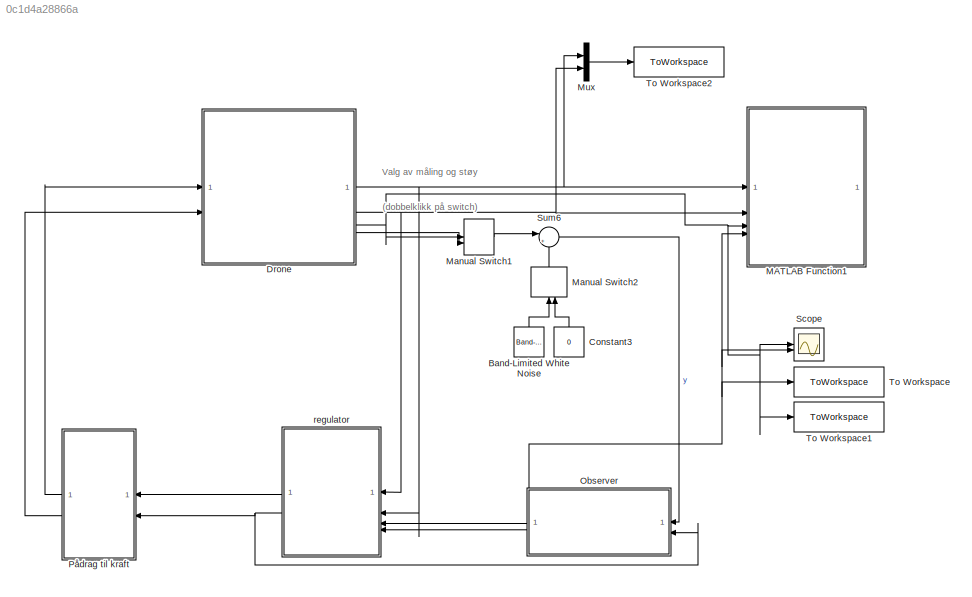
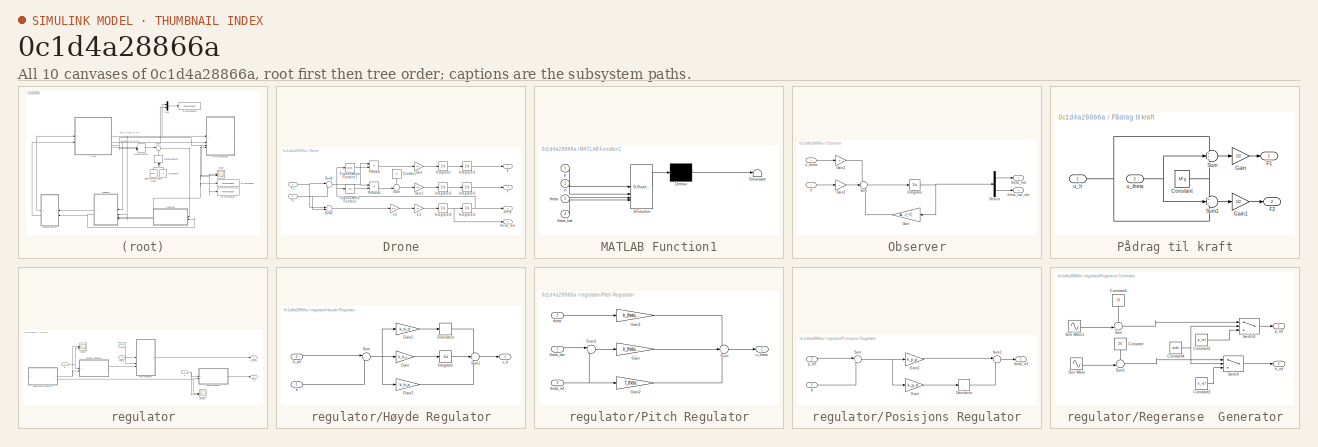
[diagram: thumbnail index - all 10 canvases of the model, root first then tree order]
MODEL slx_0c1d4a28866a
KIND model
CONFIG AbsTol = auto
CONFIG EnableMultiTasking = off
CONFIG FixedStep = auto
CONFIG MaxStep = auto
CONFIG MinStep = auto
CONFIG RelTol = 1e-3
CONFIG SampleTimeConstraint = Unconstrained
CONFIG SolverName = VariableStepAuto
CONFIG StartTime = 0.0
CONFIG StopTime = stopTime
BLOCK [Reference] Band-Limited White Noise  REF=simulink/Sources/Band-Limited
White Noise
  NameLocation = right
  SourceBlock = simulink/Sources/Band-Limited\nWhite Noise
  SourceType = Band-Limited White Noise.
BLOCK [Constant] Constant3
  NameLocation = right
  Value = 0
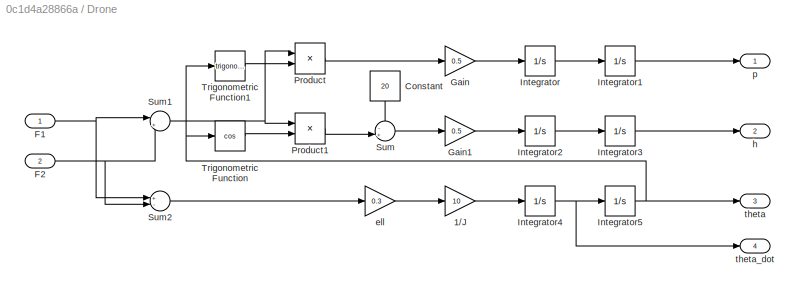
BLOCK [SubSystem] Drone
BLOCK [Gain] Drone/1//J
  Gain = 10
BLOCK [Constant] Drone/Constant
  NameLocation = left
  Value = 20
BLOCK [Inport] Drone/F1
BLOCK [Inport] Drone/F2
  Port = 2
BLOCK [Gain] Drone/Gain
  Gain = 0.5
BLOCK [Gain] Drone/Gain1
  Gain = 0.5
BLOCK [Integrator] Drone/Integrator
BLOCK [Integrator] Drone/Integrator1
BLOCK [Integrator] Drone/Integrator2
BLOCK [Integrator] Drone/Integrator3
  LimitOutput = on
  LowerSaturationLimit = 0
BLOCK [Integrator] Drone/Integrator4
BLOCK [Integrator] Drone/Integrator5
BLOCK [Product] Drone/Product
BLOCK [Product] Drone/Product1
BLOCK [Sum] Drone/Sum
  Inputs = -+|
BLOCK [Sum] Drone/Sum1
  Inputs = |++
BLOCK [Sum] Drone/Sum2
  Inputs = +-|
BLOCK [Trigonometry] Drone/Trigonometric Function
  Operator = cos
BLOCK [Trigonometry] Drone/Trigonometric Function1
BLOCK [Gain] Drone/ell
  Gain = 0.3
BLOCK [Outport] Drone/h
  Port = 2
BLOCK [Outport] Drone/p
BLOCK [Outport] Drone/theta
  Port = 3
BLOCK [Outport] Drone/theta_dot
  Port = 4
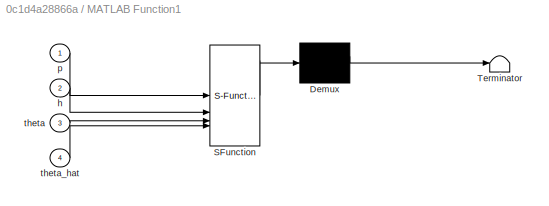
BLOCK [SubSystem] MATLAB Function1
  ErrorFcn = Stateflow.Translate.translate
  PermitHierarchicalResolution = ExplicitOnly
  SFBlockType = MATLAB Function
  SystemSampleTime = 1/30
  TreatAsAtomicUnit = on
BLOCK [Demux] MATLAB Function1/ Demux 
  Outputs = 1
BLOCK [S-Function] MATLAB Function1/ SFunction 
  EnableBusSupport = on
  FunctionName = sf_sfun
  PortCounts = [4 1]
  SFcnIsStateOwnerBlock = off
  SFunctionDeploymentMode = off
  Tag = Stateflow S-Function 3
BLOCK [Terminator] MATLAB Function1/ Terminator 
BLOCK [Inport] MATLAB Function1/h
  Port = 2
BLOCK [Inport] MATLAB Function1/p
BLOCK [Inport] MATLAB Function1/theta
  Port = 3
BLOCK [Inport] MATLAB Function1/theta_hat
  Port = 4
BLOCK [ManualSwitch] Manual Switch1
BLOCK [ManualSwitch] Manual Switch2
  NameLocation = right
BLOCK [Mux] Mux
  DisplayOption = bar
  Inputs = 2
BLOCK [SubSystem] Observer
  NameLocation = top
BLOCK [Demux] Observer/Demux
  Outputs = 2
BLOCK [Gain] Observer/Gain
  Gain = A - L*C
  Multiplication = Matrix(K*u)
  NameLocation = top
BLOCK [Gain] Observer/Gain1
  Gain = B
BLOCK [Gain] Observer/Gain2
  Gain = L
BLOCK [Integrator] Observer/Integrator
BLOCK [Sum] Observer/Sum
  Inputs = +++
BLOCK [Outport] Observer/theta_hat
BLOCK [Outport] Observer/theta_hat_dot
  Port = 2
BLOCK [Inport] Observer/u_theta
  Port = 2
BLOCK [Inport] Observer/y
BLOCK [SubSystem] Pådrag til kraft
  NameLocation = top
BLOCK [Constant] Pådrag til kraft/Constant
  Value = M*g
BLOCK [Outport] Pådrag til kraft/F1
BLOCK [Outport] Pådrag til kraft/F2
  Port = 2
BLOCK [Gain] Pådrag til kraft/Gain
  Gain = 1/2
BLOCK [Gain] Pådrag til kraft/Gain1
  Gain = 1/2
BLOCK [Sum] Pådrag til kraft/Sum
  Inputs = +++
BLOCK [Sum] Pådrag til kraft/Sum1
  Inputs = +-+
BLOCK [Inport] Pådrag til kraft/u_h
BLOCK [Inport] Pådrag til kraft/u_theta
  Port = 2
BLOCK [Scope] Scope
  Floating = off
  NumInputPorts = 2
  ScopeSpecificationString = Simulink.scopes.TimeScopeBlockCfg('CurrentConfiguration', extmgr.ConfigurationSet(extmgr.Configuration('Core','General UI',true),extmgr.Configuration('Core','Source UI',true),extmgr.Configuration('Sources','WiredSimulink',true),extmgr.Configuration('Visuals','Time Domain',true,'SerializedDisplays',{struct('MinYLimReal','-0.20781','MaxYLimReal','0.65338','YLabelReal','','MinYLimMag','0.00000','MaxY...<+1424ch>
BLOCK [Sum] Sum6
  Inputs = |++
BLOCK [ToWorkspace] To Workspace
  FixptAsFi = on
  MaxDataPoints = inf
  SampleTime = -1
  VariableName = theta_hat
BLOCK [ToWorkspace] To Workspace1
  FixptAsFi = on
  MaxDataPoints = inf
  SampleTime = -1
  VariableName = theta
BLOCK [ToWorkspace] To Workspace2
  FixptAsFi = on
  MaxDataPoints = inf
  SampleTime = -1
  VariableName = bane
BLOCK [SubSystem] regulator
  NameLocation = top
BLOCK [SubSystem] regulator/Høyde Regulator
BLOCK [Derivative] regulator/Høyde Regulator/Derivative
BLOCK [Gain] regulator/Høyde Regulator/Gain
  Gain = k_h_i
BLOCK [Gain] regulator/Høyde Regulator/Gain1
  Gain = k_h_d
BLOCK [Gain] regulator/Høyde Regulator/Gain2
  Gain = k_h_p
BLOCK [Integrator] regulator/Høyde Regulator/Integrator
BLOCK [Sum] regulator/Høyde Regulator/Sum
  Inputs = |+-
BLOCK [Sum] regulator/Høyde Regulator/Sum1
  Inputs = +++
BLOCK [Inport] regulator/Høyde Regulator/h
BLOCK [Inport] regulator/Høyde Regulator/h_ref
  Port = 2
BLOCK [Outport] regulator/Høyde Regulator/u_h
BLOCK [SubSystem] regulator/Pitch Regulator
BLOCK [Gain] regulator/Pitch Regulator/Gain
  Gain = k_theta_d
BLOCK [Gain] regulator/Pitch Regulator/Gain1
  Gain = k_theta_p
BLOCK [Gain] regulator/Pitch Regulator/Gain2
  Gain = f_theta
BLOCK [Sum] regulator/Pitch Regulator/Sum
  Inputs = --+
BLOCK [Sum] regulator/Pitch Regulator/Sum1
  Inputs = |+-
BLOCK [Inport] regulator/Pitch Regulator/theta
  Port = 2
BLOCK [Inport] regulator/Pitch Regulator/theta_dot
BLOCK [Inport] regulator/Pitch Regulator/theta_ref
  Port = 3
BLOCK [Outport] regulator/Pitch Regulator/u_theta
BLOCK [SubSystem] regulator/Posisjons Regulator
BLOCK [Derivative] regulator/Posisjons Regulator/Derivative
BLOCK [Gain] regulator/Posisjons Regulator/Gain
  Gain = k_p_d
BLOCK [Gain] regulator/Posisjons Regulator/Gain1
  Gain = k_p_p
BLOCK [Sum] regulator/Posisjons Regulator/Sum
  Inputs = |+-
BLOCK [Sum] regulator/Posisjons Regulator/Sum1
  Inputs = |++
BLOCK [Inport] regulator/Posisjons Regulator/p
BLOCK [Inport] regulator/Posisjons Regulator/p_ref
  Port = 2
BLOCK [Outport] regulator/Posisjons Regulator/theta_ref
BLOCK [SubSystem] regulator/Regeranse  Generator
BLOCK [Constant] regulator/Regeranse  Generator/Constant
  NameLocation = left
  Value = 20
BLOCK [Constant] regulator/Regeranse  Generator/Constant1
  NameLocation = left
  Value = 10
BLOCK [Constant] regulator/Regeranse  Generator/Constant2
  Value = p_ref
BLOCK [Constant] regulator/Regeranse  Generator/Constant3
  Value = h_ref
BLOCK [Constant] regulator/Regeranse  Generator/Constant4
  Value = circle
BLOCK [Sin] regulator/Regeranse  Generator/Sine Wave
  Amplitude = 5
  Frequency = 1/4
  SampleTime = 0
BLOCK [Sin] regulator/Regeranse  Generator/Sine Wave1
  Amplitude = 5
  Frequency = 1/4
  Phase = pi/2
  SampleTime = 0
BLOCK [Sum] regulator/Regeranse  Generator/Sum
  Inputs = ++|
BLOCK [Sum] regulator/Regeranse  Generator/Sum1
  Inputs = ++|
BLOCK [Switch] regulator/Regeranse  Generator/Switch
  Criteria = u2 > Threshold
  InputSameDT = off
  SaturateOnIntegerOverflow = off
BLOCK [Switch] regulator/Regeranse  Generator/Switch1
  Criteria = u2 > Threshold
  InputSameDT = off
  SaturateOnIntegerOverflow = off
BLOCK [Outport] regulator/Regeranse  Generator/h_ref
  Port = 2
BLOCK [Outport] regulator/Regeranse  Generator/p_ref
BLOCK [Scope] regulator/Scope
  Floating = off
  NumInputPorts = 2
  ScopeSpecificationString = Simulink.scopes.TimeScopeBlockCfg('CurrentConfiguration', extmgr.ConfigurationSet(extmgr.Configuration('Core','General UI',true),extmgr.Configuration('Core','Source UI',true),extmgr.Configuration('Sources','WiredSimulink',true,'DataLoggingVariableName','ScopeData1'),extmgr.Configuration('Visuals','Time Domain',true,'SerializedDisplays',{struct('MinYLimReal','-12.54895','MaxYLimReal','112.94052','Y...<+1463ch>
BLOCK [Scope] regulator/Scope1
  Floating = off
  NumInputPorts = 2
  ScopeSpecificationString = Simulink.scopes.TimeScopeBlockCfg('CurrentConfiguration', extmgr.ConfigurationSet(extmgr.Configuration('Core','General UI',true),extmgr.Configuration('Core','Source UI',true),extmgr.Configuration('Sources','WiredSimulink',true,'DataLoggingVariableName','ScopeData2'),extmgr.Configuration('Visuals','Time Domain',true,'SerializedDisplays',{struct('MinYLimReal','-1.52129','MaxYLimReal','13.69158','YLa...<+1470ch>
BLOCK [Inport] regulator/h
BLOCK [Inport] regulator/p
  Port = 2
BLOCK [Inport] regulator/theta
  Port = 3
BLOCK [Inport] regulator/theta_dot
  Port = 4
BLOCK [Outport] regulator/u_h
BLOCK [Outport] regulator/u_theta
  Port = 2
ANNOTATION (root): Valg av måling og støy (dobbelklikk på switch)
LINE Band-Limited White Noise:1 -> Manual Switch2:1
LINE Constant3:1 -> Manual Switch2:2
LINE Drone/1//J:1 -> Drone/Integrator4:1
LINE Drone/Constant:1 -> Drone/Sum:1
NET Drone/F1:1 -> Drone/Sum1:1, Drone/Sum2:1
NET Drone/F2:1 -> Drone/Sum1:2, Drone/Sum2:2
LINE Drone/Gain1:1 -> Drone/Integrator2:1
LINE Drone/Gain:1 -> Drone/Integrator:1
LINE Drone/Integrator1:1 -> Drone/p:1
LINE Drone/Integrator2:1 -> Drone/Integrator3:1
LINE Drone/Integrator3:1 -> Drone/h:1
NET Drone/Integrator4:1 -> Drone/Integrator5:1, Drone/theta_dot:1
NET Drone/Integrator5:1 -> Drone/Trigonometric Function1:1, Drone/Trigonometric Function:1, Drone/theta:1
LINE Drone/Integrator:1 -> Drone/Integrator1:1
LINE Drone/Product1:1 -> Drone/Sum:2
LINE Drone/Product:1 -> Drone/Gain:1
NET Drone/Sum1:1 -> Drone/Product1:1, Drone/Product:1
LINE Drone/Sum2:1 -> Drone/ell:1
LINE Drone/Sum:1 -> Drone/Gain1:1
LINE Drone/Trigonometric Function1:1 -> Drone/Product:2
LINE Drone/Trigonometric Function:1 -> Drone/Product1:2
LINE Drone/ell:1 -> Drone/1//J:1
NET Drone:1 -> MATLAB Function1:1, Mux:1, regulator:2
NET Drone:2 -> MATLAB Function1:2, Mux:2, regulator:1
NET Drone:3 -> MATLAB Function1:3, Manual Switch1:1, Scope:1, To Workspace1:1
LINE Drone:4 -> Manual Switch1:2
LINE Manual Switch1:1 -> Sum6:1
LINE Manual Switch2:1 -> Sum6:2
LINE Mux:1 -> To Workspace2:1
LINE Observer/Demux:1 -> Observer/theta_hat:1
LINE Observer/Demux:2 -> Observer/theta_hat_dot:1
LINE Observer/Gain1:1 -> Observer/Sum:1
LINE Observer/Gain2:1 -> Observer/Sum:2
LINE Observer/Gain:1 -> Observer/Sum:3
NET Observer/Integrator:1 -> Observer/Demux:1, Observer/Gain:1
LINE Observer/Sum:1 -> Observer/Integrator:1
LINE Observer/u_theta:1 -> Observer/Gain1:1
LINE Observer/y:1 -> Observer/Gain2:1
NET Observer:1 -> MATLAB Function1:4, Scope:2, To Workspace:1, regulator:3
LINE Observer:2 -> regulator:4
NET Pådrag til kraft/Constant:1 -> Pådrag til kraft/Sum1:1, Pådrag til kraft/Sum:3
LINE Pådrag til kraft/Gain1:1 -> Pådrag til kraft/F2:1
LINE Pådrag til kraft/Gain:1 -> Pådrag til kraft/F1:1
LINE Pådrag til kraft/Sum1:1 -> Pådrag til kraft/Gain1:1
LINE Pådrag til kraft/Sum:1 -> Pådrag til kraft/Gain:1
NET Pådrag til kraft/u_h:1 -> Pådrag til kraft/Sum1:3, Pådrag til kraft/Sum:1
NET Pådrag til kraft/u_theta:1 -> Pådrag til kraft/Sum1:2, Pådrag til kraft/Sum:2
LINE Pådrag til kraft:1 -> Drone:1
LINE Pådrag til kraft:2 -> Drone:2
LINE Sum6:1 -> Observer:1
LINE regulator/Høyde Regulator/Derivative:1 -> regulator/Høyde Regulator/Sum1:1
LINE regulator/Høyde Regulator/Gain1:1 -> regulator/Høyde Regulator/Derivative:1
LINE regulator/Høyde Regulator/Gain2:1 -> regulator/Høyde Regulator/Sum1:3
LINE regulator/Høyde Regulator/Gain:1 -> regulator/Høyde Regulator/Integrator:1
LINE regulator/Høyde Regulator/Integrator:1 -> regulator/Høyde Regulator/Sum1:2
LINE regulator/Høyde Regulator/Sum1:1 -> regulator/Høyde Regulator/u_h:1
NET regulator/Høyde Regulator/Sum:1 -> regulator/Høyde Regulator/Gain1:1, regulator/Høyde Regulator/Gain2:1, regulator/Høyde Regulator/Gain:1
LINE regulator/Høyde Regulator/h:1 -> regulator/Høyde Regulator/Sum:2
LINE regulator/Høyde Regulator/h_ref:1 -> regulator/Høyde Regulator/Sum:1
LINE regulator/Høyde Regulator:1 -> regulator/u_h:1
LINE regulator/Pitch Regulator/Gain1:1 -> regulator/Pitch Regulator/Sum:1
LINE regulator/Pitch Regulator/Gain2:1 -> regulator/Pitch Regulator/Sum:3
LINE regulator/Pitch Regulator/Gain:1 -> regulator/Pitch Regulator/Sum:2
LINE regulator/Pitch Regulator/Sum1:1 -> regulator/Pitch Regulator/Gain:1
LINE regulator/Pitch Regulator/Sum:1 -> regulator/Pitch Regulator/u_theta:1
LINE regulator/Pitch Regulator/theta:1 -> regulator/Pitch Regulator/Gain1:1
LINE regulator/Pitch Regulator/theta_dot:1 -> regulator/Pitch Regulator/Sum1:1
NET regulator/Pitch Regulator/theta_ref:1 -> regulator/Pitch Regulator/Gain2:1, regulator/Pitch Regulator/Sum1:2
LINE regulator/Pitch Regulator:1 -> regulator/u_theta:1
LINE regulator/Posisjons Regulator/Derivative:1 -> regulator/Posisjons Regulator/Sum1:2
LINE regulator/Posisjons Regulator/Gain1:1 -> regulator/Posisjons Regulator/Sum1:1
LINE regulator/Posisjons Regulator/Gain:1 -> regulator/Posisjons Regulator/Derivative:1
LINE regulator/Posisjons Regulator/Sum1:1 -> regulator/Posisjons Regulator/theta_ref:1
NET regulator/Posisjons Regulator/Sum:1 -> regulator/Posisjons Regulator/Gain1:1, regulator/Posisjons Regulator/Gain:1
LINE regulator/Posisjons Regulator/p:1 -> regulator/Posisjons Regulator/Sum:2
LINE regulator/Posisjons Regulator/p_ref:1 -> regulator/Posisjons Regulator/Sum:1
LINE regulator/Posisjons Regulator:1 -> regulator/Pitch Regulator:3
LINE regulator/Regeranse  Generator/Constant1:1 -> regulator/Regeranse  Generator/Sum:1
LINE regulator/Regeranse  Generator/Constant2:1 -> regulator/Regeranse  Generator/Switch1:3
LINE regulator/Regeranse  Generator/Constant3:1 -> regulator/Regeranse  Generator/Switch:3
NET regulator/Regeranse  Generator/Constant4:1 -> regulator/Regeranse  Generator/Switch1:2, regulator/Regeranse  Generator/Switch:2
LINE regulator/Regeranse  Generator/Constant:1 -> regulator/Regeranse  Generator/Sum1:1
LINE regulator/Regeranse  Generator/Sine Wave1:1 -> regulator/Regeranse  Generator/Sum:2
LINE regulator/Regeranse  Generator/Sine Wave:1 -> regulator/Regeranse  Generator/Sum1:2
LINE regulator/Regeranse  Generator/Sum1:1 -> regulator/Regeranse  Generator/Switch:1
LINE regulator/Regeranse  Generator/Sum:1 -> regulator/Regeranse  Generator/Switch1:1
LINE regulator/Regeranse  Generator/Switch1:1 -> regulator/Regeranse  Generator/p_ref:1
LINE regulator/Regeranse  Generator/Switch:1 -> regulator/Regeranse  Generator/h_ref:1
NET regulator/Regeranse  Generator:1 -> regulator/Posisjons Regulator:2, regulator/Scope:1
NET regulator/Regeranse  Generator:2 -> regulator/Høyde Regulator:2, regulator/Scope1:1
NET regulator/h:1 -> regulator/Høyde Regulator:1, regulator/Scope1:2
NET regulator/p:1 -> regulator/Posisjons Regulator:1, regulator/Scope:2
LINE regulator/theta:1 -> regulator/Pitch Regulator:2
LINE regulator/theta_dot:1 -> regulator/Pitch Regulator:1
LINE regulator:1 -> Pådrag til kraft:1
NET regulator:2 -> Observer:2, Pådrag til kraft:2
note: NET lines group one-source signal fan-out (src -> all destinations, sorted); 1:1 wires keep LINE
CHART MATLAB Function1 states=1 transitions=1
  STATE_LABEL 'eML_blk_kernel()'
  STATE_LABEL 'SCRIPT:\nfunction plot_drone(p, h, theta, theta_hat)\n    % Constants\n    N = 40;\n    ell = 0.3;\n\n    % Persistent variables\n    persistent buffer_p buffer_h writeIdx iter;\n    persistent Drone Drone_hat Trace_vector;\n    \n    % Initialize iteration count\n    if isempty(iter)\n        iter = 0;\n    else\n        iter = iter + 1;\n    end\n\n    % Buffer Initialization\n    if isempty(buffer_p)\n        buf...<+3608ch>'
CHART  states=0 transitions=0
